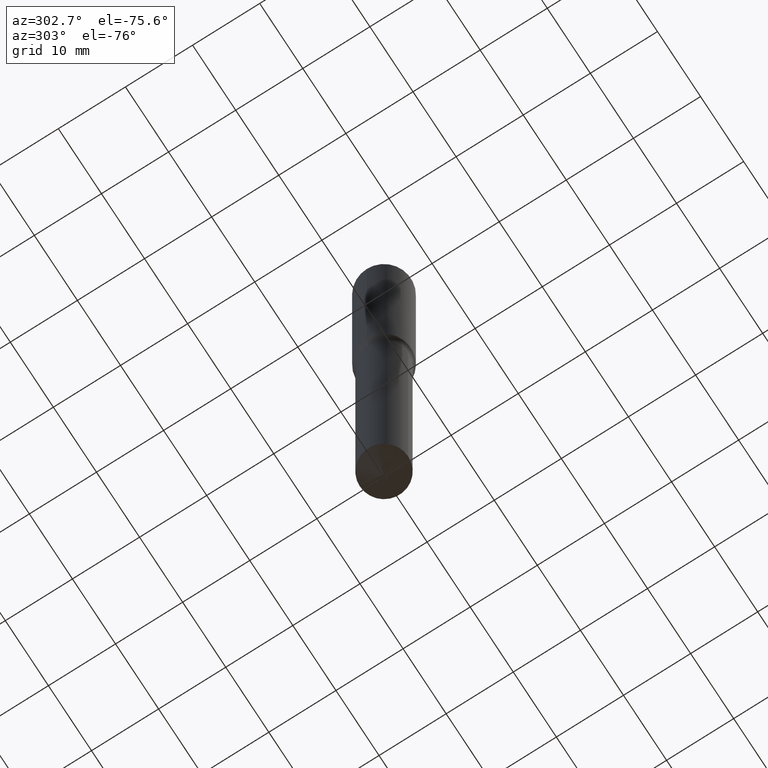
[diagram: clean part render]
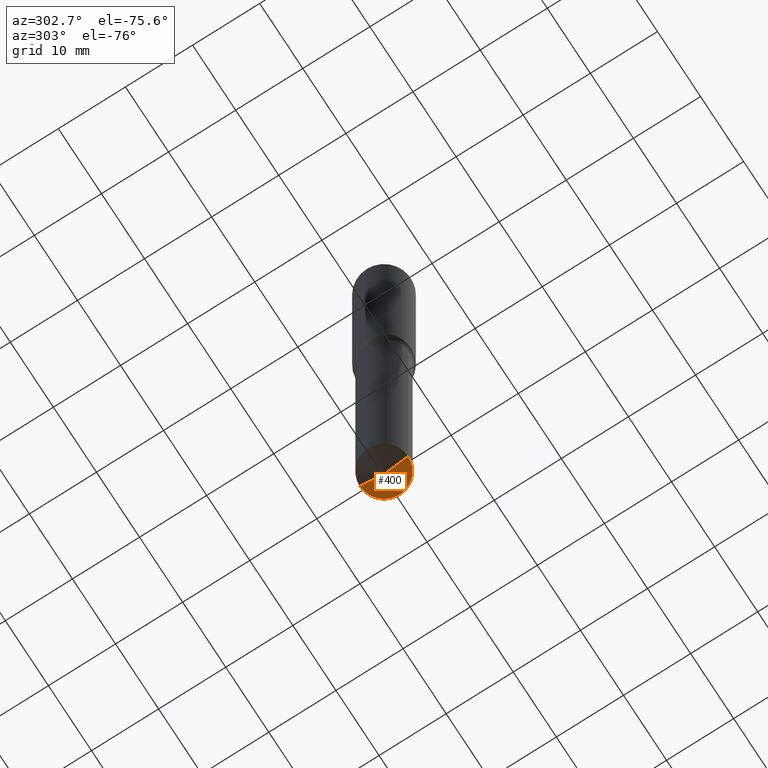
[diagram: same view with one face highlighted and labeled with its STEP entity id]
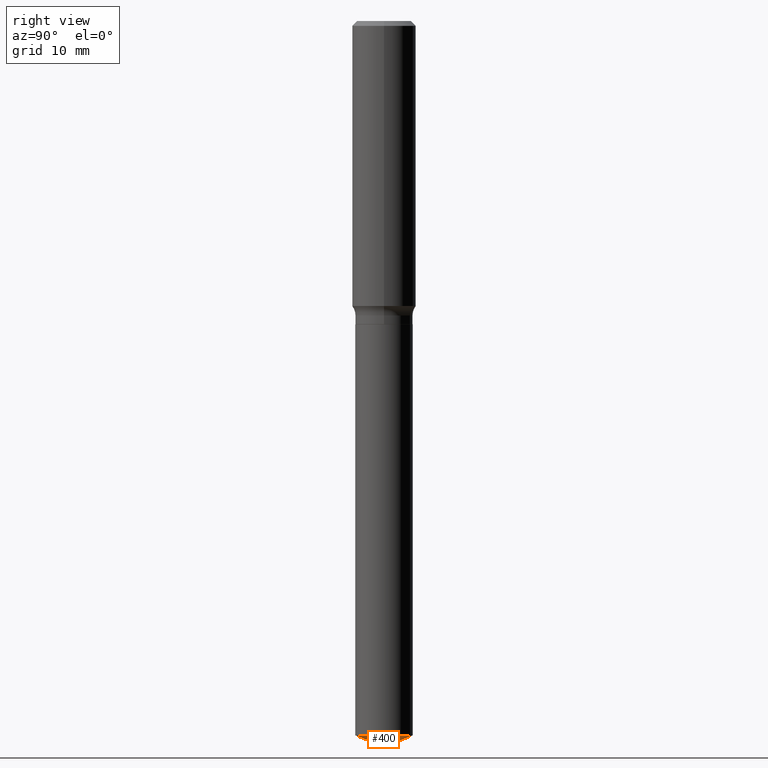
[diagram: same view with one face highlighted and labeled with its STEP entity id]
A machine part, auxiliary view. The second image highlights one B-rep face of the part: STEP entity #400.
A second angle (right view) of the same face is appended — the face is thin or edge-on in the first view.
In plain terms, the highlighted conical surface has half-angle 68 deg.
Its self-contained STEP definition (entity closure, byte-faithful):
#14 = CARTESIAN_POINT ( 'NONE',  ( 8.762031590209278139E-29, -1.251009670165531742E-14, -3.583000000000000185 ) ) ;
#25 = CARTESIAN_POINT ( 'NONE',  ( 8.762031590209278139E-29, -1.251009670165531742E-14, -3.583000000000000185 ) ) ;
#29 = ORIENTED_EDGE ( 'NONE', *, *, #62, .T. ) ;
#42 = FACE_OUTER_BOUND ( 'NONE', #318, .T. ) ;
#62 = EDGE_CURVE ( 'NONE', #114, #373, #216, .T. ) ;
#83 = CARTESIAN_POINT ( 'NONE',  ( -8.751531957252333368E-28, 1.249511565384764858E-13, 35.78707874015748303 ) ) ;
#94 = AXIS2_PLACEMENT_3D ( 'NONE', #83, #258, #226 ) ;
#98 = CARTESIAN_POINT ( 'NONE',  ( 8.622013889450241900E-29, -1.231008543107536459E-14, -3.525729282487866989 ) ) ;
#114 = VERTEX_POINT ( 'NONE', #14 ) ;
#128 = VECTOR ( 'NONE', #288, 39.37007874015748854 ) ;
#129 = CONICAL_SURFACE ( 'NONE', #94, 97.44436430772927338, 1.186823891356147964 ) ;
#131 = VECTOR ( 'NONE', #242, 39.37007874015748143 ) ;
#134 = CARTESIAN_POINT ( 'NONE',  ( 8.762101646129704419E-29, -1.250999724966648130E-14, -3.583000000000000185 ) ) ;
#181 = CIRCLE ( 'NONE', #315, 0.1417499999999999871 ) ;
#187 = EDGE_CURVE ( 'NONE', #114, #444, #406, .T. ) ;
#216 = LINE ( 'NONE', #134, #128 ) ;
#226 = DIRECTION ( 'NONE',  ( -6.982962677686265133E-15, -1.000000000000000000, 3.498761904101797187E-15 ) ) ;
#242 = DIRECTION ( 'NONE',  ( -6.474490251793185729E-15, -0.9271838545667875353, 0.3746065934159116817 ) ) ;
#243 = EDGE_CURVE ( 'NONE', #444, #373, #181, .T. ) ;
#245 = DIRECTION ( 'NONE',  ( -2.445445601509706497E-29, 3.491514569259089389E-15, 1.000000000000000000 ) ) ;
#258 = DIRECTION ( 'NONE',  ( -2.445445601509706497E-29, 3.491514569259089389E-15, 1.000000000000000000 ) ) ;
#288 = DIRECTION ( 'NONE',  ( 6.588037525764799179E-15, 0.9271838545667900888, 0.3746065934159051869 ) ) ;
#291 = CARTESIAN_POINT ( 'NONE',  ( 1.007194327940028105E-15, 0.1417499999999876914, -3.525729282487867877 ) ) ;
#315 = AXIS2_PLACEMENT_3D ( 'NONE', #98, #245, #412 ) ;
#318 = EDGE_LOOP ( 'NONE', ( #355, #29, #346 ) ) ;
#329 = CARTESIAN_POINT ( 'NONE',  ( -9.898349595619418392E-16, -0.1417500000000123106, -3.525729282487866545 ) ) ;
#346 = ORIENTED_EDGE ( 'NONE', *, *, #243, .F. ) ;
#355 = ORIENTED_EDGE ( 'NONE', *, *, #187, .F. ) ;
#373 = VERTEX_POINT ( 'NONE', #291 ) ;
#400 = ADVANCED_FACE ( 'NONE', ( #42 ), #129, .T. ) ;
#406 = LINE ( 'NONE', #25, #131 ) ;
#412 = DIRECTION ( 'NONE',  ( -6.982962677686265133E-15, -1.000000000000000000, 3.854459250319948630E-15 ) ) ;
#444 = VERTEX_POINT ( 'NONE', #329 ) ;